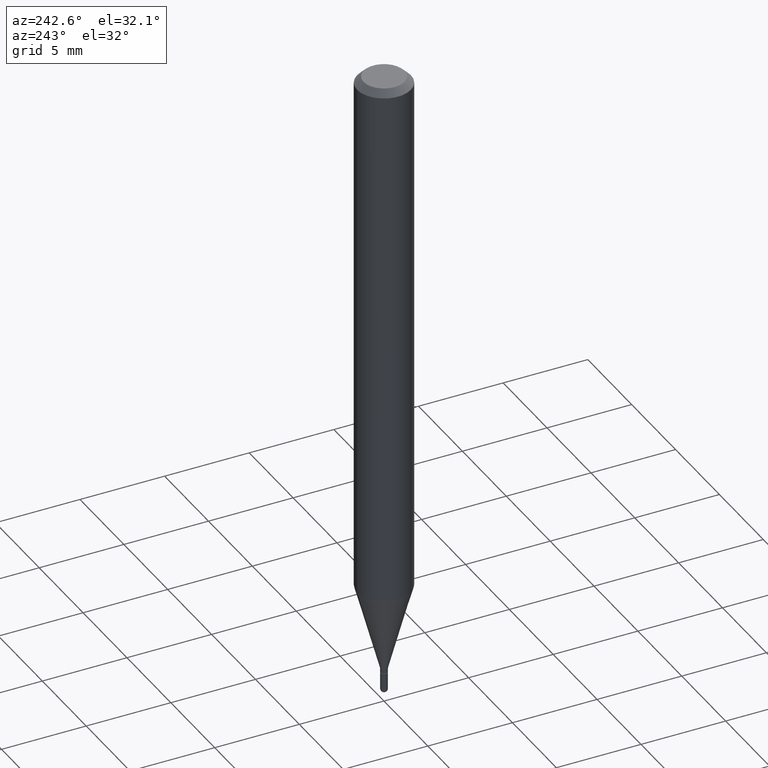
[diagram: clean part render]
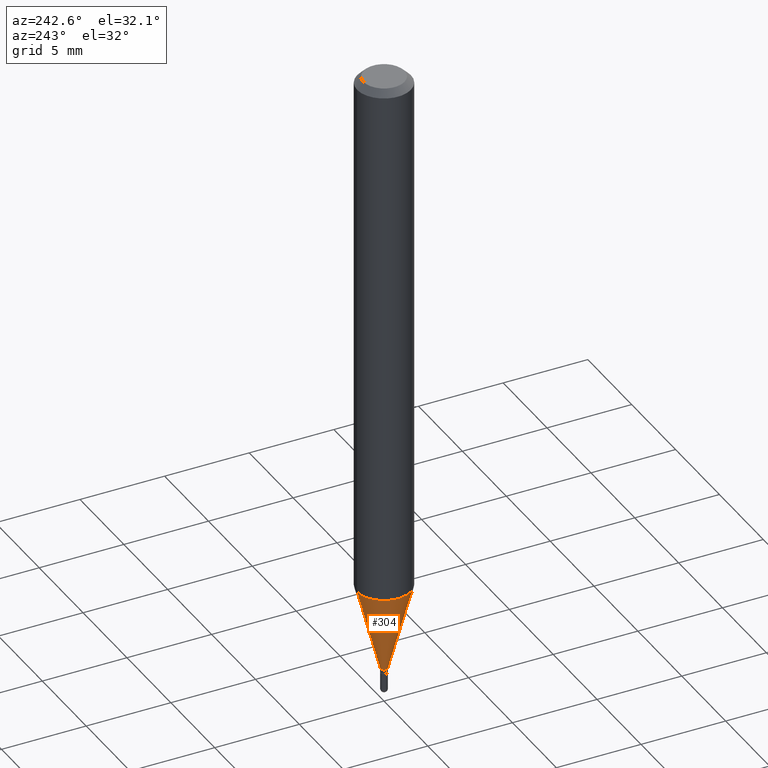
[diagram: same view with one face highlighted and labeled with its STEP entity id]
A machine part, auxiliary view. The second image highlights one B-rep face of the part: STEP entity #304.
In plain terms, the highlighted conical surface has half-angle 15 deg.
Its self-contained STEP definition (entity closure, byte-faithful):
#8 = VERTEX_POINT ( 'NONE', #371 ) ;
#15 = AXIS2_PLACEMENT_3D ( 'NONE', #203, #321, #434 ) ;
#21 = AXIS2_PLACEMENT_3D ( 'NONE', #84, #236, #200 ) ;
#27 = VERTEX_POINT ( 'NONE', #140 ) ;
#51 = DIRECTION ( 'NONE',  ( -2.445458081085281379E-29, 3.491496697796572887E-15, 1.000000000000000000 ) ) ;
#64 = EDGE_CURVE ( 'NONE', #27, #227, #391, .T. ) ;
#74 = CARTESIAN_POINT ( 'NONE',  ( -5.586370142145434109E-17, -0.008000000000004959741, -1.441999999999999726 ) ) ;
#77 = EDGE_CURVE ( 'NONE', #197, #8, #424, .T. ) ;
#82 = CIRCLE ( 'NONE', #151, 0.007999999999999923839 ) ;
#84 = CARTESIAN_POINT ( 'NONE',  ( 3.028952280476713504E-29, -4.324579090873010199E-15, -1.238603230987496584 ) ) ;
#106 = CONICAL_SURFACE ( 'NONE', #15, 0.007999999999999923839, 0.2617993877991505736 ) ;
#140 = CARTESIAN_POINT ( 'NONE',  ( -5.586370142145434109E-17, -0.008000000000004959741, -1.441999999999999726 ) ) ;
#151 = AXIS2_PLACEMENT_3D ( 'NONE', #505, #51, #320 ) ;
#153 = ORIENTED_EDGE ( 'NONE', *, *, #156, .T. ) ;
#156 = EDGE_CURVE ( 'NONE', #197, #27, #82, .T. ) ;
#197 = VERTEX_POINT ( 'NONE', #204 ) ;
#200 = DIRECTION ( 'NONE',  ( -6.982962677686265922E-15, -1.000000000000000000, 4.370956789862821150E-15 ) ) ;
#203 = CARTESIAN_POINT ( 'NONE',  ( 3.526350552924974695E-29, -5.034738238222656705E-15, -1.441999999999999726 ) ) ;
#204 = CARTESIAN_POINT ( 'NONE',  ( 2.504663143554679306E-16, 0.007999999999994889671, -1.441999999999999726 ) ) ;
#225 = VECTOR ( 'NONE', #266, 39.37007874015748854 ) ;
#227 = VERTEX_POINT ( 'NONE', #345 ) ;
#232 = ORIENTED_EDGE ( 'NONE', *, *, #509, .F. ) ;
#236 = DIRECTION ( 'NONE',  ( -2.445458081085281379E-29, 3.491496697796572887E-15, 1.000000000000000000 ) ) ;
#242 = ORIENTED_EDGE ( 'NONE', *, *, #77, .F. ) ;
#243 = VECTOR ( 'NONE', #460, 39.37007874015748143 ) ;
#244 = CIRCLE ( 'NONE', #21, 0.06250000000000000000 ) ;
#266 = DIRECTION ( 'NONE',  ( -1.807323732225332111E-15, -0.2588190451025184635, 0.9659258262890689783 ) ) ;
#275 = FACE_OUTER_BOUND ( 'NONE', #455, .T. ) ;
#297 = ORIENTED_EDGE ( 'NONE', *, *, #64, .T. ) ;
#304 = ADVANCED_FACE ( 'NONE', ( #275 ), #106, .T. ) ;
#309 = CARTESIAN_POINT ( 'NONE',  ( 5.684341886084273826E-17, 0.007999999999994889671, -1.441999999999999726 ) ) ;
#320 = DIRECTION ( 'NONE',  ( -6.982962677686267499E-15, -1.000000000000000000, 0.000000000000000000 ) ) ;
#321 = DIRECTION ( 'NONE',  ( -2.445458081085281379E-29, 3.491496697796572887E-15, 1.000000000000000000 ) ) ;
#345 = CARTESIAN_POINT ( 'NONE',  ( -4.364351673553613969E-16, -0.06250000000000432987, -1.238603230987496362 ) ) ;
#371 = CARTESIAN_POINT ( 'NONE',  ( 4.440892098500926915E-16, 0.06249999999999566319, -1.238603230987496806 ) ) ;
#391 = LINE ( 'NONE', #74, #225 ) ;
#424 = LINE ( 'NONE', #309, #243 ) ;
#434 = DIRECTION ( 'NONE',  ( -6.982962677686267499E-15, -1.000000000000000000, 0.000000000000000000 ) ) ;
#455 = EDGE_LOOP ( 'NONE', ( #242, #153, #297, #232 ) ) ;
#460 = DIRECTION ( 'NONE',  ( 1.839019923739602287E-15, 0.2588190451025252359, 0.9659258262890670910 ) ) ;
#505 = CARTESIAN_POINT ( 'NONE',  ( 3.526350552924974695E-29, -5.034738238222656705E-15, -1.441999999999999726 ) ) ;
#509 = EDGE_CURVE ( 'NONE', #8, #227, #244, .T. ) ;